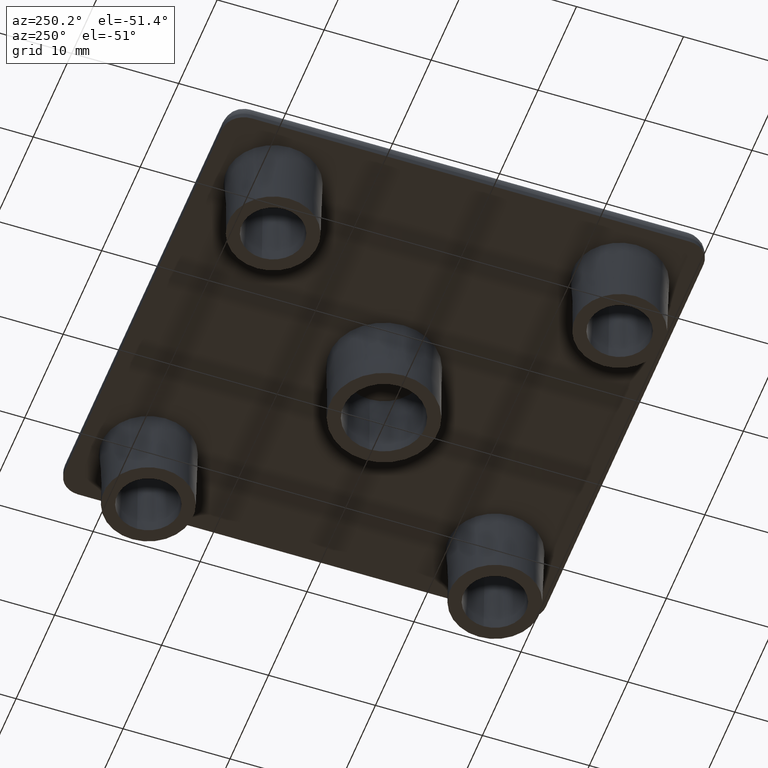
[diagram: clean part render]
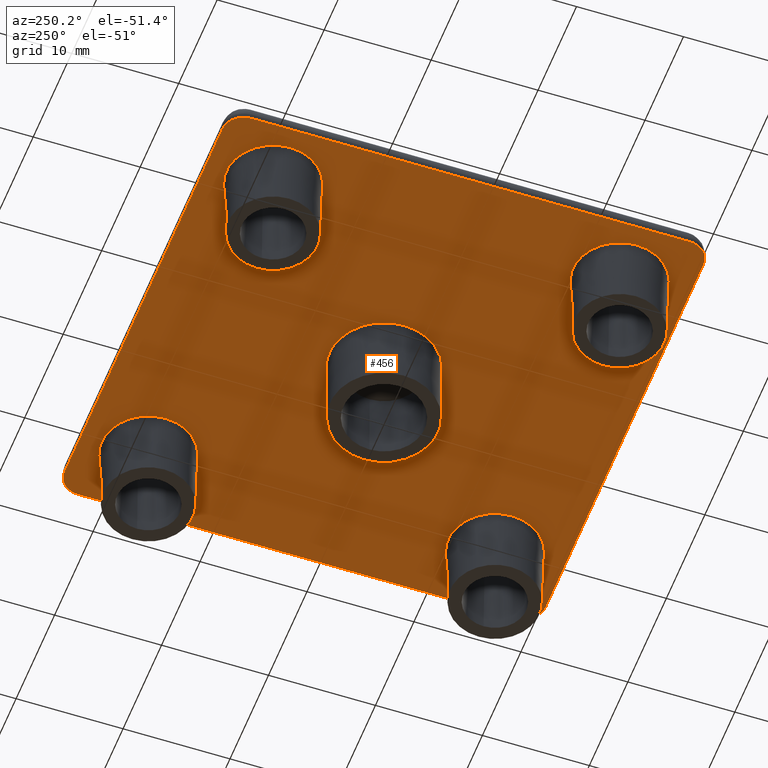
[diagram: same view with one face highlighted and labeled with its STEP entity id]
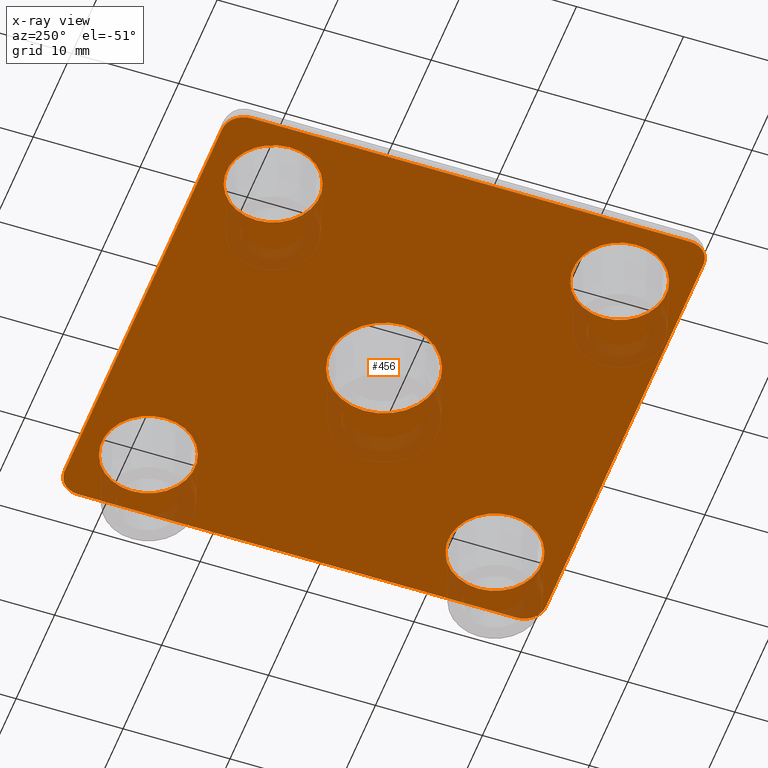
[diagram: x-ray of the same camera — body ghosted, the highlighted face saturated]
A machine part, auxiliary view. The second image highlights one B-rep face of the part: STEP entity #456.
The next image is the same camera in x-ray: the body ghosted, the highlighted face saturated — about 7% of this face is hidden behind the body in this view.
In plain terms, the highlighted planar face has unit normal (0, 0, 1).
Its self-contained STEP definition (entity closure, byte-faithful):
#27=LINE('',#754,#47);
#28=LINE('',#758,#48);
#29=LINE('',#762,#49);
#30=LINE('',#765,#50);
#47=VECTOR('',#587,41.);
#48=VECTOR('',#590,41.);
#49=VECTOR('',#593,41.);
#50=VECTOR('',#596,41.);
#68=PLANE('',#500);
#86=FACE_BOUND('',#148,.T.);
#87=FACE_BOUND('',#149,.T.);
#88=FACE_BOUND('',#150,.T.);
#89=FACE_BOUND('',#151,.T.);
#90=FACE_BOUND('',#152,.T.);
#106=FACE_OUTER_BOUND('',#147,.T.);
#147=EDGE_LOOP('',(#337,#338,#339,#340,#341,#342,#343,#344));
#148=EDGE_LOOP('',(#345));
#149=EDGE_LOOP('',(#346));
#150=EDGE_LOOP('',(#347));
#151=EDGE_LOOP('',(#348));
#152=EDGE_LOOP('',(#349));
#202=CIRCLE('',#498,5.11108807453531);
#203=CIRCLE('',#501,2.);
#204=CIRCLE('',#502,2.);
#205=CIRCLE('',#503,2.);
#206=CIRCLE('',#504,2.);
#207=CIRCLE('',#505,4.35830145098431);
#208=CIRCLE('',#506,4.35830145098431);
#209=CIRCLE('',#507,4.35830145098431);
#210=CIRCLE('',#508,4.35830145098431);
#238=VERTEX_POINT('',#746);
#239=VERTEX_POINT('',#750);
#240=VERTEX_POINT('',#751);
#241=VERTEX_POINT('',#753);
#242=VERTEX_POINT('',#755);
#243=VERTEX_POINT('',#757);
#244=VERTEX_POINT('',#759);
#245=VERTEX_POINT('',#761);
#246=VERTEX_POINT('',#763);
#247=VERTEX_POINT('',#766);
#248=VERTEX_POINT('',#768);
#249=VERTEX_POINT('',#770);
#250=VERTEX_POINT('',#772);
#278=EDGE_CURVE('',#238,#238,#202,.T.);
#279=EDGE_CURVE('',#239,#240,#203,.T.);
#280=EDGE_CURVE('',#239,#241,#27,.T.);
#281=EDGE_CURVE('',#242,#241,#204,.T.);
#282=EDGE_CURVE('',#242,#243,#28,.T.);
#283=EDGE_CURVE('',#244,#243,#205,.T.);
#284=EDGE_CURVE('',#244,#245,#29,.T.);
#285=EDGE_CURVE('',#246,#245,#206,.T.);
#286=EDGE_CURVE('',#246,#240,#30,.T.);
#287=EDGE_CURVE('',#247,#247,#207,.T.);
#288=EDGE_CURVE('',#248,#248,#208,.T.);
#289=EDGE_CURVE('',#249,#249,#209,.T.);
#290=EDGE_CURVE('',#250,#250,#210,.T.);
#337=ORIENTED_EDGE('',*,*,#279,.F.);
#338=ORIENTED_EDGE('',*,*,#280,.T.);
#339=ORIENTED_EDGE('',*,*,#281,.F.);
#340=ORIENTED_EDGE('',*,*,#282,.T.);
#341=ORIENTED_EDGE('',*,*,#283,.F.);
#342=ORIENTED_EDGE('',*,*,#284,.T.);
#343=ORIENTED_EDGE('',*,*,#285,.F.);
#344=ORIENTED_EDGE('',*,*,#286,.T.);
#345=ORIENTED_EDGE('',*,*,#287,.T.);
#346=ORIENTED_EDGE('',*,*,#288,.T.);
#347=ORIENTED_EDGE('',*,*,#289,.T.);
#348=ORIENTED_EDGE('',*,*,#290,.T.);
#349=ORIENTED_EDGE('',*,*,#278,.T.);
#456=ADVANCED_FACE('',(#106,#86,#87,#88,#89,#90),#68,.F.);
#498=AXIS2_PLACEMENT_3D('',#747,#579,#580);
#500=AXIS2_PLACEMENT_3D('',#749,#583,#584);
#501=AXIS2_PLACEMENT_3D('',#752,#585,#586);
#502=AXIS2_PLACEMENT_3D('',#756,#588,#589);
#503=AXIS2_PLACEMENT_3D('',#760,#591,#592);
#504=AXIS2_PLACEMENT_3D('',#764,#594,#595);
#505=AXIS2_PLACEMENT_3D('',#767,#597,#598);
#506=AXIS2_PLACEMENT_3D('',#769,#599,#600);
#507=AXIS2_PLACEMENT_3D('',#771,#601,#602);
#508=AXIS2_PLACEMENT_3D('',#773,#603,#604);
#579=DIRECTION('center_axis',(0.,0.,1.));
#580=DIRECTION('ref_axis',(-1.,0.,0.));
#583=DIRECTION('center_axis',(0.,0.,1.));
#584=DIRECTION('ref_axis',(1.,0.,0.));
#585=DIRECTION('center_axis',(0.,0.,1.));
#586=DIRECTION('ref_axis',(0.707106781186546,0.707106781186549,0.));
#587=DIRECTION('',(9.86864910777917E-17,-1.,0.));
#588=DIRECTION('center_axis',(0.,0.,1.));
#589=DIRECTION('ref_axis',(0.707106781186548,-0.707106781186548,0.));
#590=DIRECTION('',(-1.,-1.97372982155583E-16,0.));
#591=DIRECTION('center_axis',(0.,0.,1.));
#592=DIRECTION('ref_axis',(-0.707106781186549,-0.707106781186546,0.));
#593=DIRECTION('',(9.86864910777917E-17,1.,0.));
#594=DIRECTION('center_axis',(0.,0.,1.));
#595=DIRECTION('ref_axis',(-0.707106781186548,0.707106781186548,0.));
#596=DIRECTION('',(1.,1.97372982155583E-16,0.));
#597=DIRECTION('center_axis',(0.,0.,1.));
#598=DIRECTION('ref_axis',(-1.,0.,0.));
#599=DIRECTION('center_axis',(0.,0.,1.));
#600=DIRECTION('ref_axis',(-1.,0.,0.));
#601=DIRECTION('center_axis',(0.,0.,1.));
#602=DIRECTION('ref_axis',(-1.,0.,0.));
#603=DIRECTION('center_axis',(0.,0.,1.));
#604=DIRECTION('ref_axis',(-1.,0.,0.));
#746=CARTESIAN_POINT('',(5.11108807453531,6.25927765063988E-16,0.));
#747=CARTESIAN_POINT('Origin',(0.,0.,0.));
#749=CARTESIAN_POINT('Origin',(0.,-6.66133814775094E-15,0.));
#750=CARTESIAN_POINT('',(22.5,20.5,0.));
#751=CARTESIAN_POINT('',(20.5,22.5,0.));
#752=CARTESIAN_POINT('Origin',(20.5,20.5,0.));
#753=CARTESIAN_POINT('',(22.5,-20.5,0.));
#754=CARTESIAN_POINT('',(22.5,22.5,0.));
#755=CARTESIAN_POINT('',(20.5,-22.5,0.));
#756=CARTESIAN_POINT('Origin',(20.5,-20.5,0.));
#757=CARTESIAN_POINT('',(-20.5,-22.5,0.));
#758=CARTESIAN_POINT('',(22.5,-22.5,0.));
#759=CARTESIAN_POINT('',(-22.5,-20.5,0.));
#760=CARTESIAN_POINT('Origin',(-20.5,-20.5,0.));
#761=CARTESIAN_POINT('',(-22.5,20.5,0.));
#762=CARTESIAN_POINT('',(-22.5,-22.5,0.));
#763=CARTESIAN_POINT('',(-20.5,22.5,0.));
#764=CARTESIAN_POINT('Origin',(-20.5,20.5,0.));
#765=CARTESIAN_POINT('',(-22.5,22.5,0.));
#766=CARTESIAN_POINT('',(20.5583014509843,-16.2,0.));
#767=CARTESIAN_POINT('Origin',(16.2,-16.2,0.));
#768=CARTESIAN_POINT('',(-11.8416985490157,-16.2,0.));
#769=CARTESIAN_POINT('Origin',(-16.2,-16.2,0.));
#770=CARTESIAN_POINT('',(20.5583014509843,16.2,0.));
#771=CARTESIAN_POINT('Origin',(16.2,16.2,0.));
#772=CARTESIAN_POINT('',(-11.8416985490157,16.2,0.));
#773=CARTESIAN_POINT('Origin',(-16.2,16.2,0.));